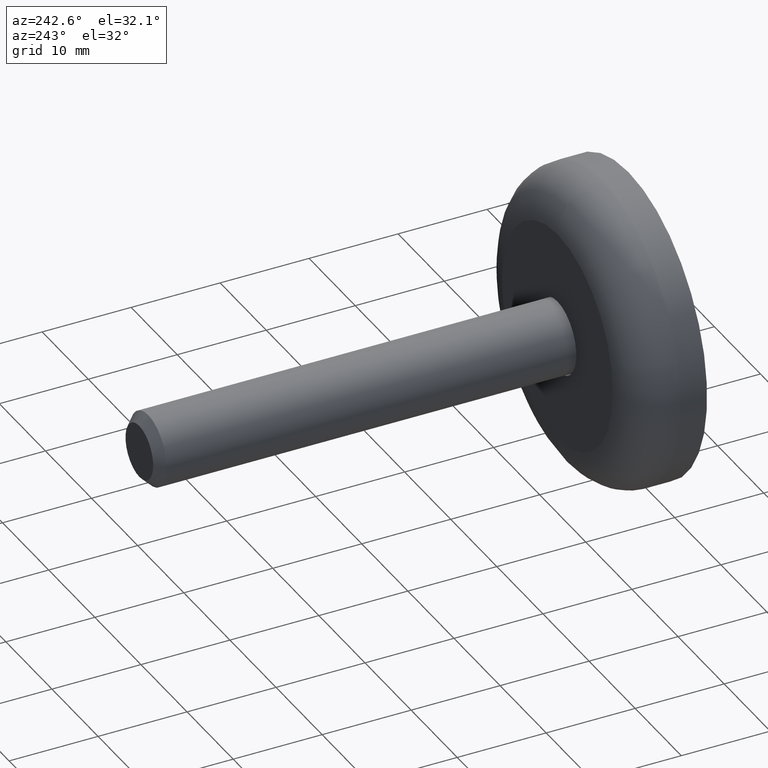
[diagram: clean part render]
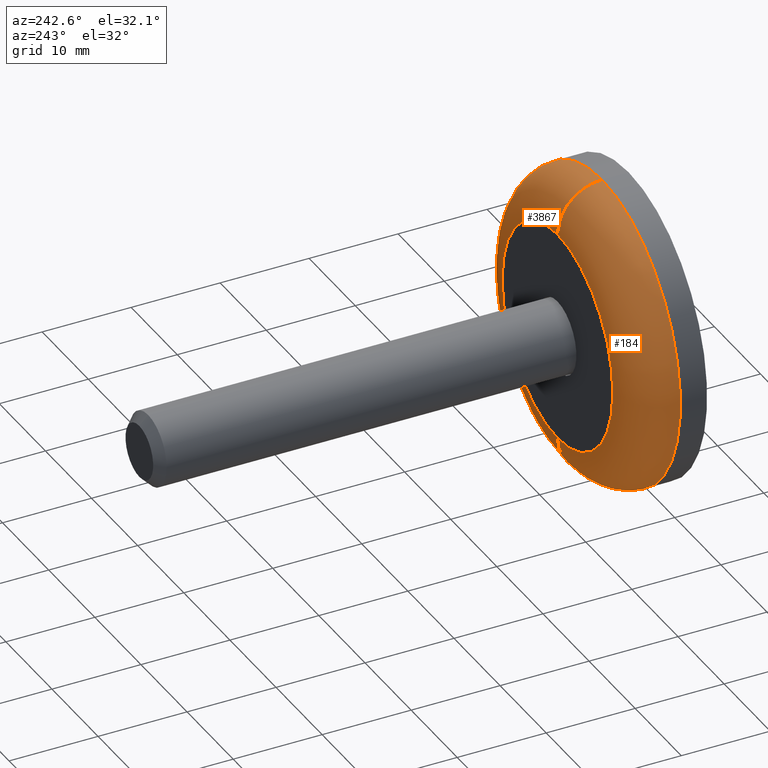
[diagram: same view with one multi-face feature highlighted, each face labeled with its STEP entity id]
A machine part, auxiliary view. The highlighted faces form ONE feature: a constant-radius fillet chain: 2 tangent blend faces with common blend radius 5 mm. The faces share edges in the B-rep.
Their STEP definitions:
[1] entity #3867 (Torus):
#69 = DIRECTION ( 'NONE',  ( 0.000000000000000000, 0.000000000000000000, 1.000000000000000000 ) ) ;
#387 = EDGE_CURVE ( 'NONE', #11889, #4924, #7840, .T. ) ;
#730 = TOROIDAL_SURFACE ( 'NONE', #2955, 12.00000000000000000, 5.000000000000000000 ) ;
#949 = ORIENTED_EDGE ( 'NONE', *, *, #4137, .F. ) ;
#1074 = DIRECTION ( 'NONE',  ( 0.000000000000000000, 1.000000000000000000, 0.000000000000000000 ) ) ;
#1269 = CARTESIAN_POINT ( 'NONE',  ( 1.469576158976823947E-15, 2.999999999999998224, -12.00000000000000000 ) ) ;
#1325 = DIRECTION ( 'NONE',  ( 1.000000000000000000, -0.000000000000000000, 1.224646799147353207E-16 ) ) ;
#1704 = AXIS2_PLACEMENT_3D ( 'NONE', #4711, #14334, #15529 ) ;
#1966 = ORIENTED_EDGE ( 'NONE', *, *, #387, .F. ) ;
#2019 = AXIS2_PLACEMENT_3D ( 'NONE', #1269, #1325, #12051 ) ;
#2246 = CARTESIAN_POINT ( 'NONE',  ( 0.000000000000000000, 2.999999999999998224, 0.000000000000000000 ) ) ;
#2955 = AXIS2_PLACEMENT_3D ( 'NONE', #2246, #1074, #13267 ) ;
#3129 = EDGE_CURVE ( 'NONE', #13102, #10227, #14384, .T. ) ;
#3770 = CARTESIAN_POINT ( 'NONE',  ( 0.000000000000000000, 7.999999999999998224, 0.000000000000000000 ) ) ;
#3867 = ADVANCED_FACE ( 'NONE', ( #8901 ), #730, .T. ) ;
#4008 = EDGE_LOOP ( 'NONE', ( #949, #7387, #13372, #1966 ) ) ;
#4029 = CARTESIAN_POINT ( 'NONE',  ( 0.000000000000000000, 7.999999999999998224, 12.00000000000000000 ) ) ;
#4137 = EDGE_CURVE ( 'NONE', #13102, #11889, #11507, .T. ) ;
#4256 = AXIS2_PLACEMENT_3D ( 'NONE', #9792, #7340, #13442 ) ;
#4711 = CARTESIAN_POINT ( 'NONE',  ( 0.000000000000000000, 2.999999999999998224, 12.00000000000000000 ) ) ;
#4924 = VERTEX_POINT ( 'NONE', #4029 ) ;
#5159 = EDGE_CURVE ( 'NONE', #4924, #10227, #12444, .T. ) ;
#7340 = DIRECTION ( 'NONE',  ( -0.000000000000000000, -1.000000000000000000, -0.000000000000000000 ) ) ;
#7387 = ORIENTED_EDGE ( 'NONE', *, *, #3129, .T. ) ;
#7840 = CIRCLE ( 'NONE', #1704, 5.000000000000000888 ) ;
#8807 = CARTESIAN_POINT ( 'NONE',  ( 0.000000000000000000, 2.999999999999998224, -17.00000000000000000 ) ) ;
#8901 = FACE_OUTER_BOUND ( 'NONE', #4008, .T. ) ;
#9152 = CARTESIAN_POINT ( 'NONE',  ( 1.775737858763662015E-15, 7.999999999999998224, -12.00000000000000000 ) ) ;
#9792 = CARTESIAN_POINT ( 'NONE',  ( 0.000000000000000000, 2.999999999999998224, 0.000000000000000000 ) ) ;
#9914 = DIRECTION ( 'NONE',  ( 0.000000000000000000, 1.000000000000000000, 0.000000000000000000 ) ) ;
#10227 = VERTEX_POINT ( 'NONE', #9152 ) ;
#11507 = CIRCLE ( 'NONE', #4256, 17.00000000000000000 ) ;
#11889 = VERTEX_POINT ( 'NONE', #14144 ) ;
#12051 = DIRECTION ( 'NONE',  ( 1.224646799147352961E-16, 0.000000000000000000, -1.000000000000000000 ) ) ;
#12444 = CIRCLE ( 'NONE', #14509, 12.00000000000000000 ) ;
#13102 = VERTEX_POINT ( 'NONE', #8807 ) ;
#13267 = DIRECTION ( 'NONE',  ( 0.000000000000000000, 0.000000000000000000, 1.000000000000000000 ) ) ;
#13372 = ORIENTED_EDGE ( 'NONE', *, *, #5159, .F. ) ;
#13442 = DIRECTION ( 'NONE',  ( 0.000000000000000000, 0.000000000000000000, 1.000000000000000000 ) ) ;
#14144 = CARTESIAN_POINT ( 'NONE',  ( 2.081899558550500280E-15, 2.999999999999998224, 17.00000000000000000 ) ) ;
#14334 = DIRECTION ( 'NONE',  ( -1.000000000000000000, 0.000000000000000000, 0.000000000000000000 ) ) ;
#14384 = CIRCLE ( 'NONE', #2019, 5.000000000000000888 ) ;
#14509 = AXIS2_PLACEMENT_3D ( 'NONE', #3770, #9914, #69 ) ;
#15529 = DIRECTION ( 'NONE',  ( 0.000000000000000000, 0.000000000000000000, 1.000000000000000000 ) ) ;
[2] entity #184 (Torus):
#36 = CARTESIAN_POINT ( 'NONE',  ( 0.000000000000000000, 7.999999999999998224, 0.000000000000000000 ) ) ;
#184 = ADVANCED_FACE ( 'NONE', ( #9949 ), #12759, .T. ) ;
#345 = DIRECTION ( 'NONE',  ( 0.000000000000000000, 0.000000000000000000, 1.000000000000000000 ) ) ;
#387 = EDGE_CURVE ( 'NONE', #11889, #4924, #7840, .T. ) ;
#1269 = CARTESIAN_POINT ( 'NONE',  ( 1.469576158976823947E-15, 2.999999999999998224, -12.00000000000000000 ) ) ;
#1325 = DIRECTION ( 'NONE',  ( 1.000000000000000000, -0.000000000000000000, 1.224646799147353207E-16 ) ) ;
#1704 = AXIS2_PLACEMENT_3D ( 'NONE', #4711, #14334, #15529 ) ;
#2019 = AXIS2_PLACEMENT_3D ( 'NONE', #1269, #1325, #12051 ) ;
#2648 = ORIENTED_EDGE ( 'NONE', *, *, #8026, .F. ) ;
#3129 = EDGE_CURVE ( 'NONE', #13102, #10227, #14384, .T. ) ;
#3412 = DIRECTION ( 'NONE',  ( -0.000000000000000000, -1.000000000000000000, -0.000000000000000000 ) ) ;
#4029 = CARTESIAN_POINT ( 'NONE',  ( 0.000000000000000000, 7.999999999999998224, 12.00000000000000000 ) ) ;
#4526 = DIRECTION ( 'NONE',  ( 0.000000000000000000, 0.000000000000000000, 1.000000000000000000 ) ) ;
#4578 = CARTESIAN_POINT ( 'NONE',  ( 0.000000000000000000, 2.999999999999998224, 0.000000000000000000 ) ) ;
#4711 = CARTESIAN_POINT ( 'NONE',  ( 0.000000000000000000, 2.999999999999998224, 12.00000000000000000 ) ) ;
#4924 = VERTEX_POINT ( 'NONE', #4029 ) ;
#5070 = AXIS2_PLACEMENT_3D ( 'NONE', #12349, #7688, #345 ) ;
#5354 = ORIENTED_EDGE ( 'NONE', *, *, #387, .T. ) ;
#5401 = ORIENTED_EDGE ( 'NONE', *, *, #6080, .F. ) ;
#5446 = CIRCLE ( 'NONE', #14210, 12.00000000000000000 ) ;
#5706 = AXIS2_PLACEMENT_3D ( 'NONE', #4578, #3412, #4526 ) ;
#6080 = EDGE_CURVE ( 'NONE', #10227, #4924, #5446, .T. ) ;
#6190 = CIRCLE ( 'NONE', #5706, 17.00000000000000000 ) ;
#7688 = DIRECTION ( 'NONE',  ( 0.000000000000000000, 1.000000000000000000, 0.000000000000000000 ) ) ;
#7840 = CIRCLE ( 'NONE', #1704, 5.000000000000000888 ) ;
#8026 = EDGE_CURVE ( 'NONE', #11889, #13102, #6190, .T. ) ;
#8507 = DIRECTION ( 'NONE',  ( 0.000000000000000000, 1.000000000000000000, 0.000000000000000000 ) ) ;
#8807 = CARTESIAN_POINT ( 'NONE',  ( 0.000000000000000000, 2.999999999999998224, -17.00000000000000000 ) ) ;
#9152 = CARTESIAN_POINT ( 'NONE',  ( 1.775737858763662015E-15, 7.999999999999998224, -12.00000000000000000 ) ) ;
#9949 = FACE_OUTER_BOUND ( 'NONE', #11261, .T. ) ;
#10227 = VERTEX_POINT ( 'NONE', #9152 ) ;
#10976 = DIRECTION ( 'NONE',  ( 0.000000000000000000, 0.000000000000000000, 1.000000000000000000 ) ) ;
#11261 = EDGE_LOOP ( 'NONE', ( #12425, #2648, #5354, #5401 ) ) ;
#11889 = VERTEX_POINT ( 'NONE', #14144 ) ;
#12051 = DIRECTION ( 'NONE',  ( 1.224646799147352961E-16, 0.000000000000000000, -1.000000000000000000 ) ) ;
#12349 = CARTESIAN_POINT ( 'NONE',  ( 0.000000000000000000, 2.999999999999998224, 0.000000000000000000 ) ) ;
#12425 = ORIENTED_EDGE ( 'NONE', *, *, #3129, .F. ) ;
#12759 = TOROIDAL_SURFACE ( 'NONE', #5070, 12.00000000000000000, 5.000000000000000000 ) ;
#13102 = VERTEX_POINT ( 'NONE', #8807 ) ;
#14144 = CARTESIAN_POINT ( 'NONE',  ( 2.081899558550500280E-15, 2.999999999999998224, 17.00000000000000000 ) ) ;
#14210 = AXIS2_PLACEMENT_3D ( 'NONE', #36, #8507, #10976 ) ;
#14334 = DIRECTION ( 'NONE',  ( -1.000000000000000000, 0.000000000000000000, 0.000000000000000000 ) ) ;
#14384 = CIRCLE ( 'NONE', #2019, 5.000000000000000888 ) ;
#15529 = DIRECTION ( 'NONE',  ( 0.000000000000000000, 0.000000000000000000, 1.000000000000000000 ) ) ;